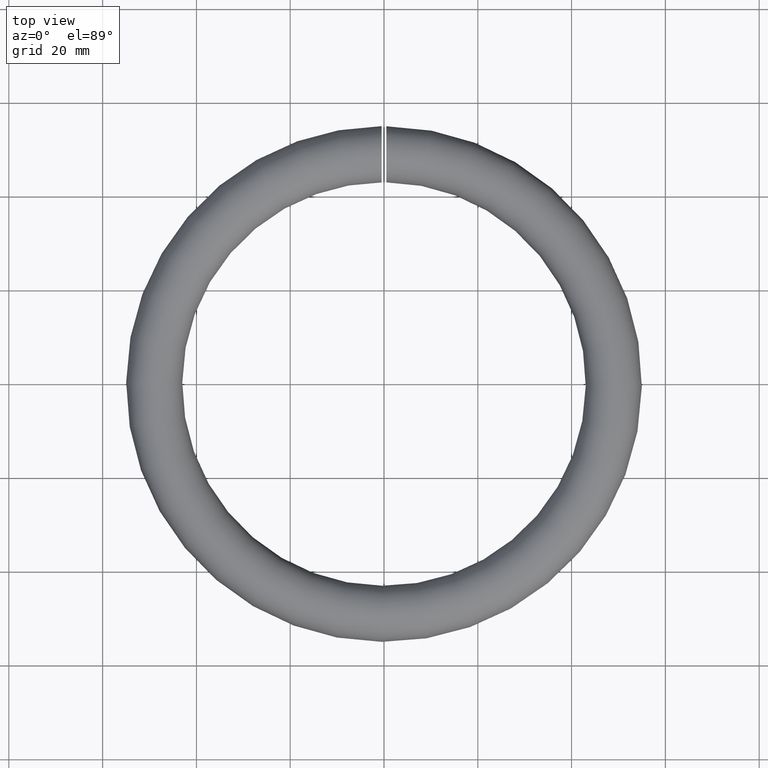
[diagram: clean part render]
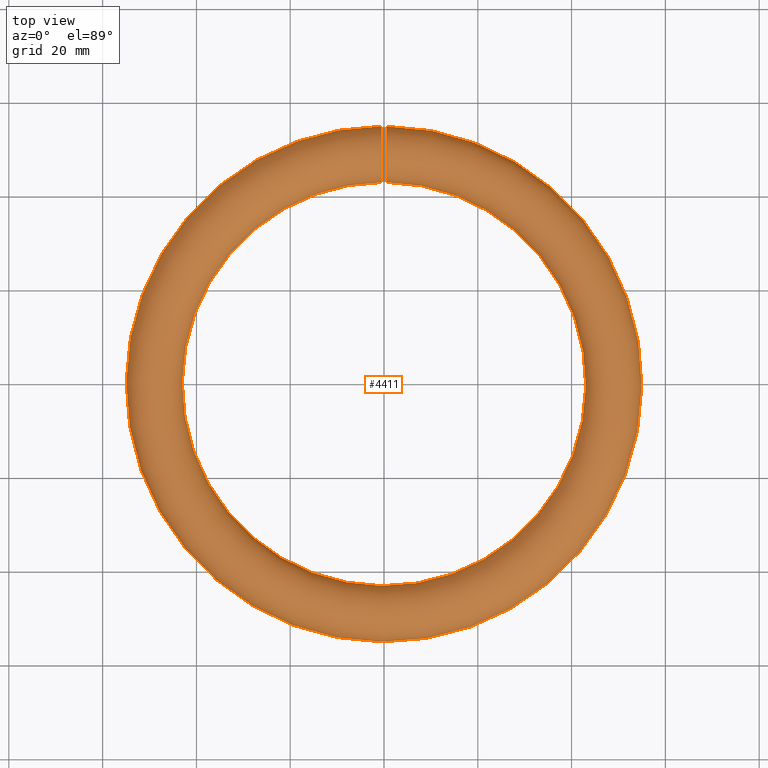
[diagram: same view with one face highlighted and labeled with its STEP entity id]
A machine part, top view. The second image highlights one B-rep face of the part: STEP entity #4411.
In plain terms, the highlighted toroidal blend (fillet) surface has major radius 49 mm and minor (blend) radius 6 mm.
Its self-contained STEP definition (entity closure, byte-faithful):
#292 = FACE_OUTER_BOUND ( 'NONE', #3840, .T. ) ;
#496 = CARTESIAN_POINT ( 'NONE',  ( -0.5000000000000000000, 44.08065393162220900, 3.444770832032137100 ) ) ;
#527 = EDGE_CURVE ( 'NONE', #4718, #4718, #6708, .T. ) ;
#532 = CARTESIAN_POINT ( 'NONE',  ( 0.4999999999999998900, 52.54773017452081500, -4.852817388999098600 ) ) ;
#537 = CARTESIAN_POINT ( 'NONE',  ( -0.5000000000000001100, 43.05492518707435300, 0.9185928923396010600 ) ) ;
#568 = CARTESIAN_POINT ( 'NONE',  ( 0.5000000000000000000, 46.29127431843577500, 5.358699202967510000 ) ) ;
#575 = CARTESIAN_POINT ( 'NONE',  ( -0.5000000000000000000, 43.15499560662299000, -1.422830636590925800 ) ) ;
#611 = CARTESIAN_POINT ( 'NONE',  ( 0.5000000000000001100, 45.45281722988323700, 4.857314581957262500 ) ) ;
#617 = CARTESIAN_POINT ( 'NONE',  ( -0.4999999999999998900, 46.45987683134878000, 5.451176160057678500 ) ) ;
#656 = CARTESIAN_POINT ( 'NONE',  ( 0.4999999999999998900, 43.77075478099990100, 2.953579129577456300 ) ) ;
#689 = CARTESIAN_POINT ( 'NONE',  ( 0.4999999999999998900, 44.20246581567678800, 3.612336356117131300 ) ) ;
#729 = CARTESIAN_POINT ( 'NONE',  ( 0.5000000000000000000, 43.08328052258791300, -1.032190698622838900 ) ) ;
#736 = CARTESIAN_POINT ( 'NONE',  ( -0.5000000000000002200, 54.86736150361412700, -1.304375911311582900 ) ) ;
#825 = CARTESIAN_POINT ( 'NONE',  ( -0.5000000000000000000, 51.53697250310973000, -5.439681139563204800 ) ) ;
#830 = VERTEX_POINT ( 'NONE', #4779 ) ;
#1435 = CARTESIAN_POINT ( 'NONE',  ( -0.5000000000000000000, 44.84226332417094300, 4.346205955781620400 ) ) ;
#1468 = CARTESIAN_POINT ( 'NONE',  ( 0.5000000000000000000, 49.92101108086669800, 5.941391749450241700 ) ) ;
#1478 = CARTESIAN_POINT ( 'NONE',  ( -0.4999999999999998900, 52.12027515464922800, 5.138461307451745300 ) ) ;
#1514 = CARTESIAN_POINT ( 'NONE',  ( 0.4999999999999998900, 48.07989525469471200, -5.942338437274894900 ) ) ;
#1525 = CARTESIAN_POINT ( 'NONE',  ( -0.5000000000000001100, 44.19718576664309500, 3.605427392115716900 ) ) ;
#1559 = CARTESIAN_POINT ( 'NONE',  ( 0.5000000000000000000, 50.41979354461476200, -5.832298223198380400 ) ) ;
#1565 = CARTESIAN_POINT ( 'NONE',  ( -0.4999999999999998900, 47.57403010200388800, 5.832060825753847800 ) ) ;
#1599 = CARTESIAN_POINT ( 'NONE',  ( 0.5000000000000001100, 54.78099301850910100, 1.610110195969255400 ) ) ;
#1608 = CARTESIAN_POINT ( 'NONE',  ( -0.5000000000000001100, 43.33179272187847200, -1.985645309867571000 ) ) ;
#1655 = CARTESIAN_POINT ( 'NONE',  ( -0.4999999999999997800, 54.22986902692137800, -2.943285039445640500 ) ) ;
#1704 = CARTESIAN_POINT ( 'NONE',  ( -0.4999999999999998900, 53.15802763227961900, -4.341401641522661100 ) ) ;
#1738 = CARTESIAN_POINT ( 'NONE',  ( -0.5000000000000000000, 55.00516396763811900, 0.2586164256186786500 ) ) ;
#1768 = CARTESIAN_POINT ( 'NONE',  ( 0.5000000000000000000, 42.98929955938714200, -0.2481585434286028000 ) ) ;
#1777 = CARTESIAN_POINT ( 'NONE',  ( -0.5000000000000000000, 54.12960518495825800, -3.114860687549930500 ) ) ;
#1819 = CARTESIAN_POINT ( 'NONE',  ( -0.5000000000000002200, 47.69954192173031500, -5.871180863752582200 ) ) ;
#2187 = FACE_OUTER_BOUND ( 'NONE', #4408, .T. ) ;
#2256 = CARTESIAN_POINT ( 'NONE',  ( 0.5000000000000000000, 45.38921489184108500, -4.797948764382832500 ) ) ;
#2370 = CARTESIAN_POINT ( 'NONE',  ( 0.5000000000000001100, 51.52665278657050200, -5.444472392501561200 ) ) ;
#2378 = CARTESIAN_POINT ( 'NONE',  ( -0.5000000000000001100, 47.95981836779431300, 5.912890555972632400 ) ) ;
#2416 = CARTESIAN_POINT ( 'NONE',  ( 0.5000000000000000000, 53.91934764306218100, -3.454143417117949700 ) ) ;
#2422 = CARTESIAN_POINT ( 'NONE',  ( -0.5000000000000001100, 52.44746376732027900, 4.924647675636713900 ) ) ;
#2452 = CARTESIAN_POINT ( 'NONE',  ( 0.5000000000000000000, 54.63700370366090900, -2.058454469397827900 ) ) ;
#2459 = CARTESIAN_POINT ( 'NONE',  ( -0.5000000000000003300, 50.30278227539030700, 5.869330449262182700 ) ) ;
#2496 = CARTESIAN_POINT ( 'NONE',  ( 0.5000000000000001100, 54.70116337795886400, -1.873204177276148700 ) ) ;
#2507 = CARTESIAN_POINT ( 'NONE',  ( -0.5000000000000000000, 43.86602494980055400, 3.116098776592733300 ) ) ;
#2541 = CARTESIAN_POINT ( 'NONE',  ( 0.5000000000000000000, 43.35095673620281800, 2.067449642796437700 ) ) ;
#2552 = CARTESIAN_POINT ( 'NONE',  ( -0.5000000000000001100, 44.14305911392529700, -3.548907818607601100 ) ) ;
#2590 = CARTESIAN_POINT ( 'NONE',  ( -0.4999999999999998900, 50.42526790811227500, -5.840944385640109500 ) ) ;
#2629 = CARTESIAN_POINT ( 'NONE',  ( -0.5000000000000000000, 44.65215805708835000, -4.156648691260179400 ) ) ;
#2671 = CARTESIAN_POINT ( 'NONE',  ( -0.4999999999999998900, 53.43146622008605100, -4.061317566518537700 ) ) ;
#2715 = CARTESIAN_POINT ( 'NONE',  ( -0.4999999999999998900, 51.71299752620392800, -5.353943070541477700 ) ) ;
#2751 = CARTESIAN_POINT ( 'NONE',  ( -0.5000000000000001100, 53.91394886670146000, -3.445173169381695400 ) ) ;
#2871 = DIRECTION ( 'NONE',  ( -0.0000000000000000000, -0.0000000000000000000, -1.000000000000000000 ) ) ;
#3174 = CARTESIAN_POINT ( 'NONE',  ( 0.4999999999999998900, 44.65215811744460700, -4.156648763310946600 ) ) ;
#3297 = CARTESIAN_POINT ( 'NONE',  ( 0.5000000000000004400, 53.06836371159484900, 4.425453027099063500 ) ) ;
#3333 = CARTESIAN_POINT ( 'NONE',  ( 0.4999999999999997800, 54.94202430374715400, 0.8387482558739377500 ) ) ;
#3342 = CARTESIAN_POINT ( 'NONE',  ( -0.5000000000000001100, 49.12802032086138800, 6.011635706223225700 ) ) ;
#3379 = CARTESIAN_POINT ( 'NONE',  ( 0.5000000000000001100, 51.06402944878316700, 5.646754464609182700 ) ) ;
#3425 = CARTESIAN_POINT ( 'NONE',  ( 0.4999999999999997800, 54.83118809771785600, 1.417526276058502800 ) ) ;
#3432 = CARTESIAN_POINT ( 'NONE',  ( -0.5000000000000001100, 48.15344694453129600, 5.943563757472548800 ) ) ;
#3458 = CARTESIAN_POINT ( 'NONE',  ( 0.4999999999999998900, 54.93910041178968800, -0.9256749692334829100 ) ) ;
#3508 = CARTESIAN_POINT ( 'NONE',  ( -0.4999999999999998900, 45.88126933763202700, -5.142297648267189400 ) ) ;
#3548 = CARTESIAN_POINT ( 'NONE',  ( -0.5000000000000000000, 44.39760858550683100, -3.852778254933893400 ) ) ;
#3624 = CARTESIAN_POINT ( 'NONE',  ( -0.5000000000000000000, 50.98870728630059500, -5.663396498617872900 ) ) ;
#3840 = EDGE_LOOP ( 'NONE', ( #7417 ) ) ;
#4014 = CARTESIAN_POINT ( 'NONE',  ( 0.5000000000000000000, 46.57211854667780700, -5.502097572572822100 ) ) ;
#4136 = CARTESIAN_POINT ( 'NONE',  ( 0.5000000000000001100, 45.87731436494524200, -5.128803286440771100 ) ) ;
#4172 = CARTESIAN_POINT ( 'NONE',  ( 0.5000000000000000000, 46.04901092447659000, -5.229372972627328600 ) ) ;
#4181 = CARTESIAN_POINT ( 'NONE',  ( -0.5000000000000000000, 44.39760858550683100, -3.852778254933893400 ) ) ;
#4217 = CARTESIAN_POINT ( 'NONE',  ( 0.4999999999999998900, 50.03536760954299500, -5.912816389671435000 ) ) ;
#4261 = CARTESIAN_POINT ( 'NONE',  ( 0.5000000000000000000, 52.44699235360119600, 4.913290018835527700 ) ) ;
#4302 = CARTESIAN_POINT ( 'NONE',  ( 0.4999999999999998900, 51.70525492625378000, -5.357936598634917200 ) ) ;
#4308 = CARTESIAN_POINT ( 'NONE',  ( -0.5000000000000001100, 43.92258022214769400, -3.225137775304237800 ) ) ;
#4336 = CARTESIAN_POINT ( 'NONE',  ( 0.5000000000000000000, 54.45094907700598700, 2.532928269967477300 ) ) ;
#4347 = CARTESIAN_POINT ( 'NONE',  ( -0.4999999999999997800, 44.56828272748595800, 4.067016737023066300 ) ) ;
#4384 = CARTESIAN_POINT ( 'NONE',  ( 0.4999999999999998900, 47.68731246285347700, -5.868343831971085200 ) ) ;
#4408 = EDGE_LOOP ( 'NONE', ( #8945 ) ) ;
#4411 = ADVANCED_FACE ( 'NONE', ( #292, #2187 ), #10584, .T. ) ;
#4434 = CARTESIAN_POINT ( 'NONE',  ( -0.5000000000000001100, 46.57918636595516700, -5.494661514124026700 ) ) ;
#4547 = CARTESIAN_POINT ( 'NONE',  ( -0.4999999999999998900, 47.13219847674506000, -5.706137409501324400 ) ) ;
#4620 = EDGE_CURVE ( 'NONE', #830, #830, #6397, .T. ) ;
#4718 = VERTEX_POINT ( 'NONE', #10351 ) ;
#4779 = CARTESIAN_POINT ( 'NONE',  ( 0.5000000000000000000, 44.39760858550682300, -3.852778254933892500 ) ) ;
#5149 = CARTESIAN_POINT ( 'NONE',  ( 0.5000000000000000000, 52.11811529939659900, 5.128450626945827700 ) ) ;
#5157 = CARTESIAN_POINT ( 'NONE',  ( -0.4999999999999998900, 43.66848545687892600, 2.778453811369280500 ) ) ;
#5183 = CARTESIAN_POINT ( 'NONE',  ( 0.4999999999999998900, 54.40642501387993200, -2.604676233205609900 ) ) ;
#5193 = CARTESIAN_POINT ( 'NONE',  ( -0.5000000000000000000, 53.84742378275559800, 3.554334378623007100 ) ) ;
#5226 = CARTESIAN_POINT ( 'NONE',  ( 0.5000000000000000000, 47.01728479578270700, 5.667269391849874400 ) ) ;
#5234 = CARTESIAN_POINT ( 'NONE',  ( -0.4999999999999998900, 49.91700966031440600, 5.942331671385724200 ) ) ;
#5265 = CARTESIAN_POINT ( 'NONE',  ( 0.5000000000000000000, 48.74260052907186500, 6.007421467187642200 ) ) ;
#5306 = CARTESIAN_POINT ( 'NONE',  ( 0.5000000000000001100, 43.13004724660295600, 1.315727815439168900 ) ) ;
#5352 = CARTESIAN_POINT ( 'NONE',  ( -0.5000000000000000000, 54.94088787762046200, -0.9120556458585287200 ) ) ;
#5386 = CARTESIAN_POINT ( 'NONE',  ( 0.4999999999999998900, 44.14305905356904000, -3.548907746556856600 ) ) ;
#5478 = CARTESIAN_POINT ( 'NONE',  ( -0.5000000000000000000, 46.94412494717547400, -5.641185806180095200 ) ) ;
#5510 = CARTESIAN_POINT ( 'NONE',  ( 0.5000000000000000000, 43.16355586505027000, -1.417172581262231800 ) ) ;
#6075 = CARTESIAN_POINT ( 'NONE',  ( 0.5000000000000002200, 54.13337481750399100, -3.127174444779735800 ) ) ;
#6085 = CARTESIAN_POINT ( 'NONE',  ( -0.5000000000000001100, 51.59680541588869600, 5.411352166621116000 ) ) ;
#6124 = CARTESIAN_POINT ( 'NONE',  ( 0.5000000000000001100, 46.83078600493026800, 5.598659144363314700 ) ) ;
#6170 = CARTESIAN_POINT ( 'NONE',  ( 0.5000000000000000000, 46.46775825766322000, 5.444287713530747500 ) ) ;
#6178 = CARTESIAN_POINT ( 'NONE',  ( -0.4999999999999998900, 43.64087963915915900, -2.710852905438343900 ) ) ;
#6205 = CARTESIAN_POINT ( 'NONE',  ( 0.5000000000000001100, 43.87152689536563300, 3.125164135841190600 ) ) ;
#6248 = CARTESIAN_POINT ( 'NONE',  ( 0.5000000000000002200, 48.85972426452571700, -6.011175895738569300 ) ) ;
#6303 = CARTESIAN_POINT ( 'NONE',  ( -0.4999999999999998900, 54.64739256528508100, -2.057956118132220800 ) ) ;
#6338 = CARTESIAN_POINT ( 'NONE',  ( 0.5000000000000001100, 43.21291089894550200, -1.606628160118371600 ) ) ;
#6397 = B_SPLINE_CURVE_WITH_KNOTS ( 'NONE', 3,
 ( #10679, #3174, #11534, #2256, #8710, #4136, #4172, #4014, #7152, #4384, #1514, #6248, #7932, #11698, #4217, #1559, #11737, #11653, #2370, #4302, #10800, #532, #8995, #7975, #2416, #6075, #5183, #8830, #2452, #2496, #8014, #3458, #7896, #8872, #3333, #9895, #3425, #1599, #7191, #4336, #9809, #10846, #9847, #3297, #10714, #4261, #5149, #7024, #9766, #3379, #8954, #1468, #9936, #5265, #10755, #10884, #5226, #6124, #6170, #568, #7067, #611, #11775, #8916, #689, #7105, #6205, #656, #8053, #2541, #5306, #11813, #7342, #1768, #7305, #729, #5510, #6338, #11934, #9107, #8213, #5386, #9969 ),
 .UNSPECIFIED., .T., .F.,
 ( 4, 2, 2, 2, 2, 2, 2, 2, 1, 2, 2, 2, 2, 2, 2, 2, 2, 2, 2, 2, 2, 2, 2, 2, 2, 2, 2, 2, 2, 2, 2, 2, 2, 2, 2, 2, 2, 2, 2, 2, 2, 4 ),
 ( 0.0000000000000000000, 0.001172319493903223400, 0.001758479240854835300, 0.002344638987806446900, 0.003516958481709671900, 0.004689277975612896400, 0.005861597469516120100, 0.006447757216467723200, 0.007033916963419324700, 0.007620076710370927800, 0.008206236457322531000, 0.009378555951225714700, 0.01055087544512890200, 0.01172319493903208700, 0.01230935468598368500, 0.01289551443293528200, 0.01406783392683847100, 0.01524015342074166100, 0.01582631316769325700, 0.01641247291464485400, 0.01758479240854804800, 0.01875711190245124200, 0.01992943139635444300, 0.02051559114330604000, 0.02110175089025764100, 0.02227407038416081400, 0.02344638987806399500, 0.02461870937196717100, 0.02579102886587035200, 0.02637718861282194200, 0.02696334835977353500, 0.02813566785367669100, 0.02930798734757985400, 0.02989414709453143800, 0.03048030684148302100, 0.03165262633538618000, 0.03282494582928934000, 0.03399726532319250600, 0.03458342507014408600, 0.03516958481709566600, 0.03634190431099882500, 0.03751422380490197800 ),
 .UNSPECIFIED. ) ;
#6708 = B_SPLINE_CURVE_WITH_KNOTS ( 'NONE', 3,
 ( #4181, #2552, #4308, #6178, #7158, #6991, #1608, #575, #9777, #7114, #7982, #537, #8058, #10812, #9004, #10687, #5157, #2507, #496, #1525, #4347, #1435, #8963, #7034, #617, #9856, #7905, #1565, #2378, #3432, #10763, #3342, #5234, #2459, #9901, #10854, #11661, #6085, #1478, #2422, #8878, #9816, #5193, #9116, #7234, #11016, #8098, #7315, #10103, #9081, #1738, #11860, #5352, #736, #6303, #10060, #1655, #1777, #2751, #8182, #2671, #1704, #11941, #8220, #2715, #825, #11055, #3624, #2590, #9160, #10935, #9048, #9975, #1819, #4547, #5478, #4434, #8140, #3508, #7350, #11985, #2629, #3548 ),
 .UNSPECIFIED., .T., .F.,
 ( 4, 2, 2, 2, 2, 2, 2, 2, 1, 2, 2, 2, 2, 2, 2, 2, 2, 2, 2, 2, 2, 2, 2, 2, 2, 2, 2, 2, 2, 2, 2, 2, 2, 2, 2, 2, 2, 2, 2, 2, 2, 4 ),
 ( 0.0000000000000000000, 0.001172320813364482500, 0.001758481220046717900, 0.002344641626728953600, 0.003516962440093418100, 0.004689283253457883000, 0.005861604066822347400, 0.006447764473504581800, 0.007033924880186817100, 0.007620085286869052400, 0.008206245693551286700, 0.009378566506915741700, 0.01055088732028019800, 0.01172320813364465800, 0.01230936854032688700, 0.01289552894700911500, 0.01406784976037355100, 0.01524017057373798800, 0.01582633098042021700, 0.01641249138710244500, 0.01758481220046690200, 0.01875713301383135500, 0.01992945382719581200, 0.02051561423387804300, 0.02110177464056026800, 0.02227409545392473500, 0.02344641626728919500, 0.02461873708065365600, 0.02579105789401811600, 0.02637721830070034400, 0.02696337870738256500, 0.02813569952074702500, 0.02930802033411148900, 0.02989418074079372100, 0.03048034114747595600, 0.03165266196084041300, 0.03282498277420487600, 0.03399730358756934000, 0.03458346399425157900, 0.03516962440093382400, 0.03634194521429828100, 0.03751426602766274500 ),
 .UNSPECIFIED. ) ;
#6991 = CARTESIAN_POINT ( 'NONE',  ( -0.5000000000000001100, 43.40070684441850100, -2.172312896108566300 ) ) ;
#7024 = CARTESIAN_POINT ( 'NONE',  ( 0.5000000000000001100, 51.94926755556463900, 5.227408414931975500 ) ) ;
#7034 = CARTESIAN_POINT ( 'NONE',  ( -0.4999999999999998900, 45.77166703597199400, 5.074384434179676400 ) ) ;
#7067 = CARTESIAN_POINT ( 'NONE',  ( 0.5000000000000002200, 45.77652416109054900, 5.077373700876476500 ) ) ;
#7105 = CARTESIAN_POINT ( 'NONE',  ( 0.4999999999999998900, 44.08717822821596100, 3.454085091755198200 ) ) ;
#7114 = CARTESIAN_POINT ( 'NONE',  ( -0.5000000000000001100, 42.98994767383515400, -0.2606955112814481300 ) ) ;
#7152 = CARTESIAN_POINT ( 'NONE',  ( 0.5000000000000001100, 46.93470246069521300, -5.647944097959054900 ) ) ;
#7158 = CARTESIAN_POINT ( 'NONE',  ( -0.5000000000000001100, 43.55520981598620300, -2.534617501772821900 ) ) ;
#7191 = CARTESIAN_POINT ( 'NONE',  ( 0.5000000000000001100, 54.60409613703713900, 2.173322852542908500 ) ) ;
#7234 = CARTESIAN_POINT ( 'NONE',  ( -0.5000000000000001100, 54.35276619979277500, 2.713322263860922700 ) ) ;
#7305 = CARTESIAN_POINT ( 'NONE',  ( 0.4999999999999997800, 43.05230944887969000, -0.8356401493389047400 ) ) ;
#7315 = CARTESIAN_POINT ( 'NONE',  ( -0.5000000000000001100, 54.66168421932554400, 1.989374638198555500 ) ) ;
#7342 = CARTESIAN_POINT ( 'NONE',  ( 0.5000000000000001100, 42.98601322362525700, 0.1427505249313733000 ) ) ;
#7350 = CARTESIAN_POINT ( 'NONE',  ( -0.5000000000000001100, 45.55149385723446900, -4.927822493035242800 ) ) ;
#7417 = ORIENTED_EDGE ( 'NONE', *, *, #4620, .T. ) ;
#7436 = CARTESIAN_POINT ( 'NONE',  ( 0.0000000000000000000, 0.0000000000000000000, 0.0000000000000000000 ) ) ;
#7896 = CARTESIAN_POINT ( 'NONE',  ( 0.5000000000000001100, 55.00922582197314600, -0.1367795387637320800 ) ) ;
#7905 = CARTESIAN_POINT ( 'NONE',  ( -0.4999999999999998900, 47.38162717570711600, 5.781696701238468300 ) ) ;
#7932 = CARTESIAN_POINT ( 'NONE',  ( 0.5000000000000002200, 49.25078140374994000, -6.007616600728385800 ) ) ;
#7975 = CARTESIAN_POINT ( 'NONE',  ( 0.5000000000000000000, 53.42765799914938200, -4.065590149128733600 ) ) ;
#7982 = CARTESIAN_POINT ( 'NONE',  ( -0.5000000000000002200, 42.98593945876099600, 0.1387796944811077200 ) ) ;
#8014 = CARTESIAN_POINT ( 'NONE',  ( 0.5000000000000000000, 54.86593179888076600, -1.310337567486224500 ) ) ;
#8053 = CARTESIAN_POINT ( 'NONE',  ( 0.5000000000000001100, 43.49711178494742100, 2.430009955028678400 ) ) ;
#8058 = CARTESIAN_POINT ( 'NONE',  ( -0.5000000000000002200, 43.12701433237334200, 1.302966249214117600 ) ) ;
#8098 = CARTESIAN_POINT ( 'NONE',  ( -0.4999999999999997800, 54.59385915805969300, 2.172954623666445900 ) ) ;
#8140 = CARTESIAN_POINT ( 'NONE',  ( -0.5000000000000001100, 46.40131929358585700, -5.412858043751042700 ) ) ;
#8182 = CARTESIAN_POINT ( 'NONE',  ( -0.4999999999999998900, 53.79872928960082100, -3.603904270685818600 ) ) ;
#8213 = CARTESIAN_POINT ( 'NONE',  ( 0.4999999999999998900, 43.92096872460547300, -3.223207035221211200 ) ) ;
#8220 = CARTESIAN_POINT ( 'NONE',  ( -0.4999999999999998900, 52.22692906201405100, -5.071903935591962000 ) ) ;
#8710 = CARTESIAN_POINT ( 'NONE',  ( 0.5000000000000004400, 45.54770436073550100, -4.913183859335013900 ) ) ;
#8830 = CARTESIAN_POINT ( 'NONE',  ( 0.5000000000000000000, 54.48975570188611100, -2.424094414011278800 ) ) ;
#8872 = CARTESIAN_POINT ( 'NONE',  ( 0.5000000000000000000, 55.00499973847141900, 0.2558431025277356800 ) ) ;
#8878 = CARTESIAN_POINT ( 'NONE',  ( -0.4999999999999998900, 53.05879540786671800, 4.434033170503746600 ) ) ;
#8916 = CARTESIAN_POINT ( 'NONE',  ( 0.4999999999999998900, 44.57029129033340800, 4.068814537468856700 ) ) ;
#8945 = ORIENTED_EDGE ( 'NONE', *, *, #527, .T. ) ;
#8954 = CARTESIAN_POINT ( 'NONE',  ( 0.5000000000000001100, 50.30553431360576200, 5.869007609292635800 ) ) ;
#8963 = CARTESIAN_POINT ( 'NONE',  ( -0.5000000000000000000, 45.44197213843671100, 4.849032221200714900 ) ) ;
#8995 = CARTESIAN_POINT ( 'NONE',  ( 0.5000000000000000000, 53.14796287566347400, -4.350631846338696800 ) ) ;
#9004 = CARTESIAN_POINT ( 'NONE',  ( -0.5000000000000001100, 43.35796420400848200, 2.058766478873210300 ) ) ;
#9048 = CARTESIAN_POINT ( 'NONE',  ( -0.4999999999999998900, 48.86427208065990200, -6.011297152639454700 ) ) ;
#9081 = CARTESIAN_POINT ( 'NONE',  ( -0.5000000000000001100, 54.91934235040773900, 1.044323163827626700 ) ) ;
#9107 = CARTESIAN_POINT ( 'NONE',  ( 0.5000000000000002200, 43.54145760267354600, -2.528313252964460300 ) ) ;
#9116 = CARTESIAN_POINT ( 'NONE',  ( -0.4999999999999998900, 54.06832502133711700, 3.231723628469080500 ) ) ;
#9160 = CARTESIAN_POINT ( 'NONE',  ( -0.5000000000000000000, 50.04269331388925200, -5.921236082847960900 ) ) ;
#9766 = CARTESIAN_POINT ( 'NONE',  ( 0.5000000000000001100, 51.42971952799872800, 5.498850036709798800 ) ) ;
#9777 = CARTESIAN_POINT ( 'NONE',  ( -0.5000000000000003300, 43.07497526911698300, -1.040293531997137400 ) ) ;
#9809 = CARTESIAN_POINT ( 'NONE',  ( 0.5000000000000001100, 54.07509815782059800, 3.220793957221224100 ) ) ;
#9816 = CARTESIAN_POINT ( 'NONE',  ( -0.5000000000000000000, 53.34432255673616700, 4.154493601979701200 ) ) ;
#9847 = CARTESIAN_POINT ( 'NONE',  ( 0.4999999999999997800, 53.34725742237685600, 4.151421191914555400 ) ) ;
#9856 = CARTESIAN_POINT ( 'NONE',  ( -0.5000000000000002200, 46.81932147078233400, 5.604528494893688900 ) ) ;
#9895 = CARTESIAN_POINT ( 'NONE',  ( 0.5000000000000001100, 54.91154013381736800, 1.032231427989459800 ) ) ;
#9901 = CARTESIAN_POINT ( 'NONE',  ( -0.4999999999999998900, 50.86561693661365500, 5.705128298104966700 ) ) ;
#9936 = CARTESIAN_POINT ( 'NONE',  ( 0.5000000000000001100, 49.14173076474266100, 6.011006612454732300 ) ) ;
#9969 = CARTESIAN_POINT ( 'NONE',  ( 0.4999999999999998900, 44.39760858550681600, -3.852778254933892900 ) ) ;
#9975 = CARTESIAN_POINT ( 'NONE',  ( -0.4999999999999998900, 48.08381965915833700, -5.942962019205064700 ) ) ;
#10060 = CARTESIAN_POINT ( 'NONE',  ( -0.5000000000000000000, 54.50179600355151200, -2.420595961071627200 ) ) ;
#10103 = CARTESIAN_POINT ( 'NONE',  ( -0.5000000000000001100, 54.83783977186166700, 1.430287468318089500 ) ) ;
#10351 = CARTESIAN_POINT ( 'NONE',  ( -0.5000000000000000000, 44.39760858550682300, -3.852778254933892500 ) ) ;
#10584 = TOROIDAL_SURFACE ( 'NONE', #10941, 49.00000000000000000, 6.000000000000000000 ) ;
#10679 = CARTESIAN_POINT ( 'NONE',  ( 0.4999999999999998900, 44.39760858550681600, -3.852778254933892900 ) ) ;
#10687 = CARTESIAN_POINT ( 'NONE',  ( -0.5000000000000000000, 43.50466562835863700, 2.423104191056823600 ) ) ;
#10714 = CARTESIAN_POINT ( 'NONE',  ( 0.5000000000000000000, 52.60785441207063000, 4.796361472436607300 ) ) ;
#10755 = CARTESIAN_POINT ( 'NONE',  ( 0.5000000000000000000, 47.96211515277516200, 5.923027211154464000 ) ) ;
#10763 = CARTESIAN_POINT ( 'NONE',  ( -0.5000000000000000000, 48.73648316973627500, 6.007059194933135300 ) ) ;
#10800 = CARTESIAN_POINT ( 'NONE',  ( 0.4999999999999998900, 52.22480248394611400, -5.073569221198510200 ) ) ;
#10812 = CARTESIAN_POINT ( 'NONE',  ( -0.5000000000000000000, 43.29288933965808900, 1.871028195865441800 ) ) ;
#10846 = CARTESIAN_POINT ( 'NONE',  ( 0.5000000000000001100, 53.84993755017086400, 3.550902338973139100 ) ) ;
#10854 = CARTESIAN_POINT ( 'NONE',  ( -0.5000000000000000000, 51.05075991242812000, 5.641193177201979700 ) ) ;
#10884 = CARTESIAN_POINT ( 'NONE',  ( 0.5000000000000001100, 47.57956053727704700, 5.843293217039683200 ) ) ;
#10935 = CARTESIAN_POINT ( 'NONE',  ( -0.4999999999999998900, 49.26386605500449900, -6.006870253512005300 ) ) ;
#10941 = AXIS2_PLACEMENT_3D ( 'NONE', #7436, #2871, #11061 ) ;
#11016 = CARTESIAN_POINT ( 'NONE',  ( -0.5000000000000000000, 54.43968448280669700, 2.534454620840182600 ) ) ;
#11055 = CARTESIAN_POINT ( 'NONE',  ( -0.5000000000000000000, 51.17531157462158800, -5.594288122493307600 ) ) ;
#11061 = DIRECTION ( 'NONE',  ( -1.000000000000000000, 0.0000000000000000000, 0.0000000000000000000 ) ) ;
#11534 = CARTESIAN_POINT ( 'NONE',  ( 0.5000000000000002200, 44.93227078290443900, -4.430463849630035300 ) ) ;
#11653 = CARTESIAN_POINT ( 'NONE',  ( 0.4999999999999996700, 51.16543111809504300, -5.598110421547517000 ) ) ;
#11661 = CARTESIAN_POINT ( 'NONE',  ( -0.5000000000000000000, 51.41600468341339800, 5.494533065288687900 ) ) ;
#11698 = CARTESIAN_POINT ( 'NONE',  ( 0.4999999999999998900, 49.83912193879976400, -5.943952057476145100 ) ) ;
#11737 = CARTESIAN_POINT ( 'NONE',  ( 0.4999999999999998900, 50.79837170713823700, -5.733352914315585000 ) ) ;
#11775 = CARTESIAN_POINT ( 'NONE',  ( 0.5000000000000001100, 44.84569968392664000, 4.349879026428590500 ) ) ;
#11813 = CARTESIAN_POINT ( 'NONE',  ( 0.4999999999999998900, 43.05560467687952600, 0.9231025600241407100 ) ) ;
#11860 = CARTESIAN_POINT ( 'NONE',  ( -0.5000000000000001100, 55.00900364376733600, -0.1326401512829653300 ) ) ;
#11934 = CARTESIAN_POINT ( 'NONE',  ( 0.5000000000000000000, 43.38811489764312800, -2.166057807814937500 ) ) ;
#11941 = CARTESIAN_POINT ( 'NONE',  ( -0.5000000000000000000, 52.55193180476379000, -4.850092780282447600 ) ) ;
#11985 = CARTESIAN_POINT ( 'NONE',  ( -0.4999999999999998900, 44.93388777485572700, -4.432387204866118100 ) ) ;